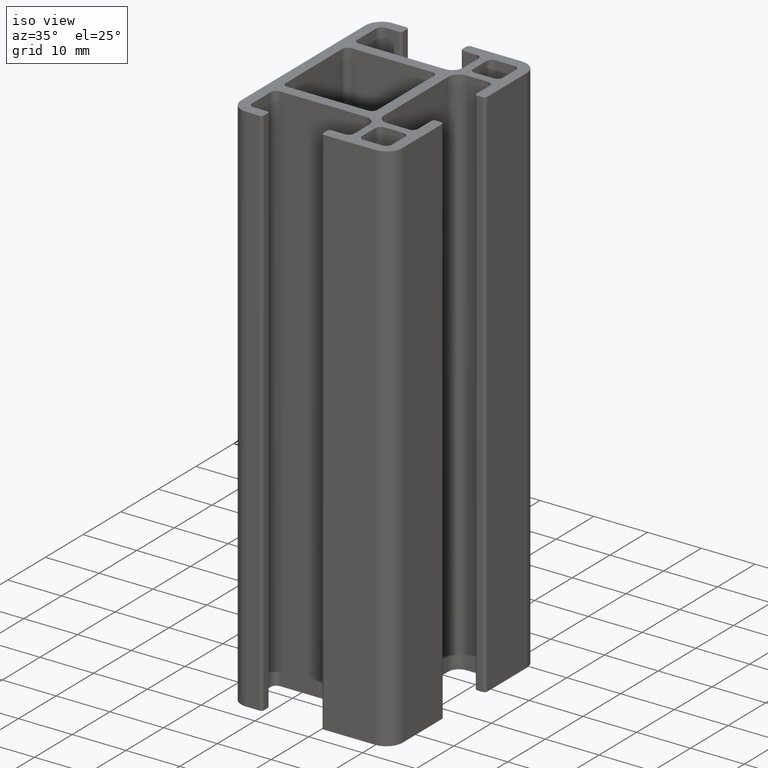
[diagram: clean part render]
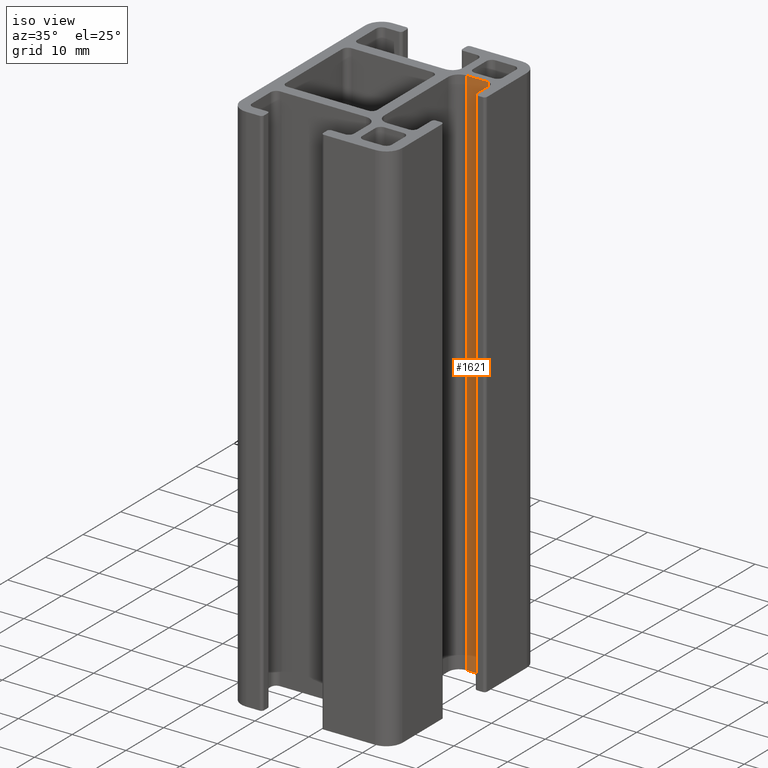
[diagram: same view with one face highlighted and labeled with its STEP entity id]
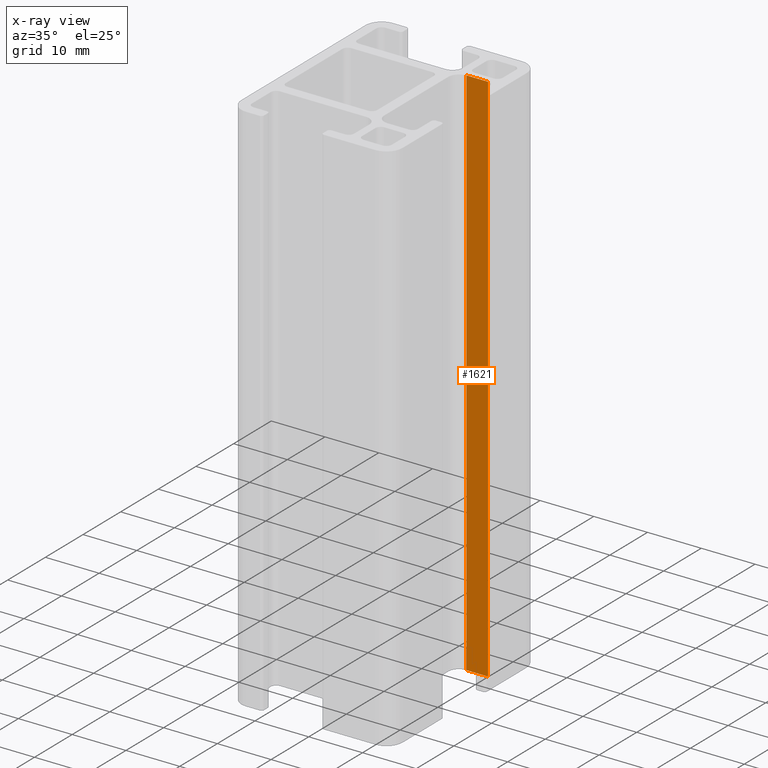
[diagram: x-ray of the same camera — body ghosted, the highlighted face saturated]
A machine part, iso view. The second image highlights one B-rep face of the part: STEP entity #1621.
The next image is the same camera in x-ray: the body ghosted, the highlighted face saturated — about 0% of this face is hidden behind the body in this view.
In plain terms, the highlighted planar face has unit normal (0, 1, 0).
Its self-contained STEP definition (entity closure, byte-faithful):
#209=FACE_OUTER_BOUND('',#291,.T.);
#291=EDGE_LOOP('',(#1303,#1304,#1305,#1306));
#420=LINE('',#2624,#580);
#446=LINE('',#2704,#606);
#447=LINE('',#2707,#607);
#448=LINE('',#2708,#608);
#580=VECTOR('',#2136,100.);
#606=VECTOR('',#2214,100.);
#607=VECTOR('',#2219,3.99999999999999);
#608=VECTOR('',#2220,3.99999999999999);
#744=VERTEX_POINT('',#2618);
#746=VERTEX_POINT('',#2622);
#773=VERTEX_POINT('',#2701);
#774=VERTEX_POINT('',#2703);
#958=EDGE_CURVE('',#746,#744,#420,.T.);
#997=EDGE_CURVE('',#774,#773,#446,.T.);
#999=EDGE_CURVE('',#744,#773,#447,.T.);
#1000=EDGE_CURVE('',#774,#746,#448,.T.);
#1303=ORIENTED_EDGE('',*,*,#999,.F.);
#1304=ORIENTED_EDGE('',*,*,#958,.F.);
#1305=ORIENTED_EDGE('',*,*,#1000,.F.);
#1306=ORIENTED_EDGE('',*,*,#997,.T.);
#1543=PLANE('',#1777);
#1621=ADVANCED_FACE('',(#209),#1543,.F.);
#1777=AXIS2_PLACEMENT_3D('',#2706,#2217,#2218);
#2136=DIRECTION('',(0.,0.,1.));
#2214=DIRECTION('',(0.,0.,1.));
#2217=DIRECTION('center_axis',(0.,1.,0.));
#2218=DIRECTION('ref_axis',(-1.,0.,0.));
#2219=DIRECTION('',(1.,0.,0.));
#2220=DIRECTION('',(-1.,0.,0.));
#2618=CARTESIAN_POINT('',(8.00000000000001,10.5,100.));
#2622=CARTESIAN_POINT('',(8.00000000000001,10.5,0.));
#2624=CARTESIAN_POINT('',(8.00000000000001,10.5,0.));
#2701=CARTESIAN_POINT('',(12.,10.5,100.));
#2703=CARTESIAN_POINT('',(12.,10.5,0.));
#2704=CARTESIAN_POINT('',(12.,10.5,0.));
#2706=CARTESIAN_POINT('Origin',(12.,10.5,0.));
#2707=CARTESIAN_POINT('',(6.,10.5,100.));
#2708=CARTESIAN_POINT('',(6.,10.5,0.));